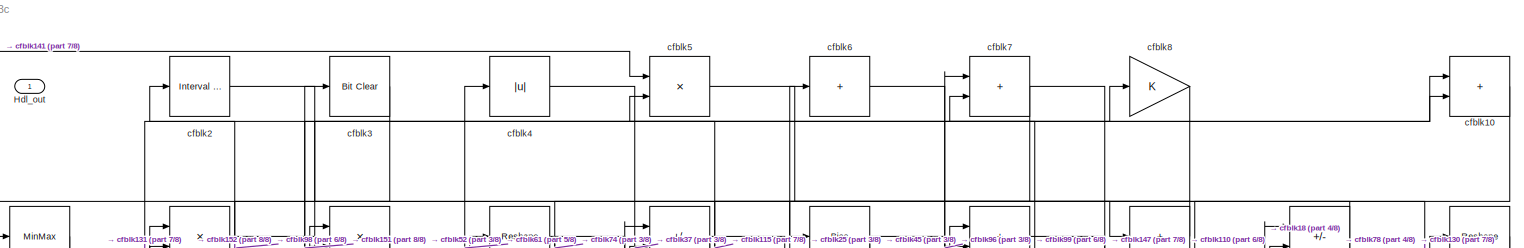
[diagram: root canvas - part 1/8, full width, top band]
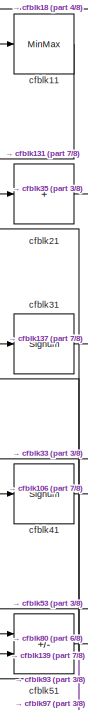
[diagram: root canvas - part 2/8, top left region]
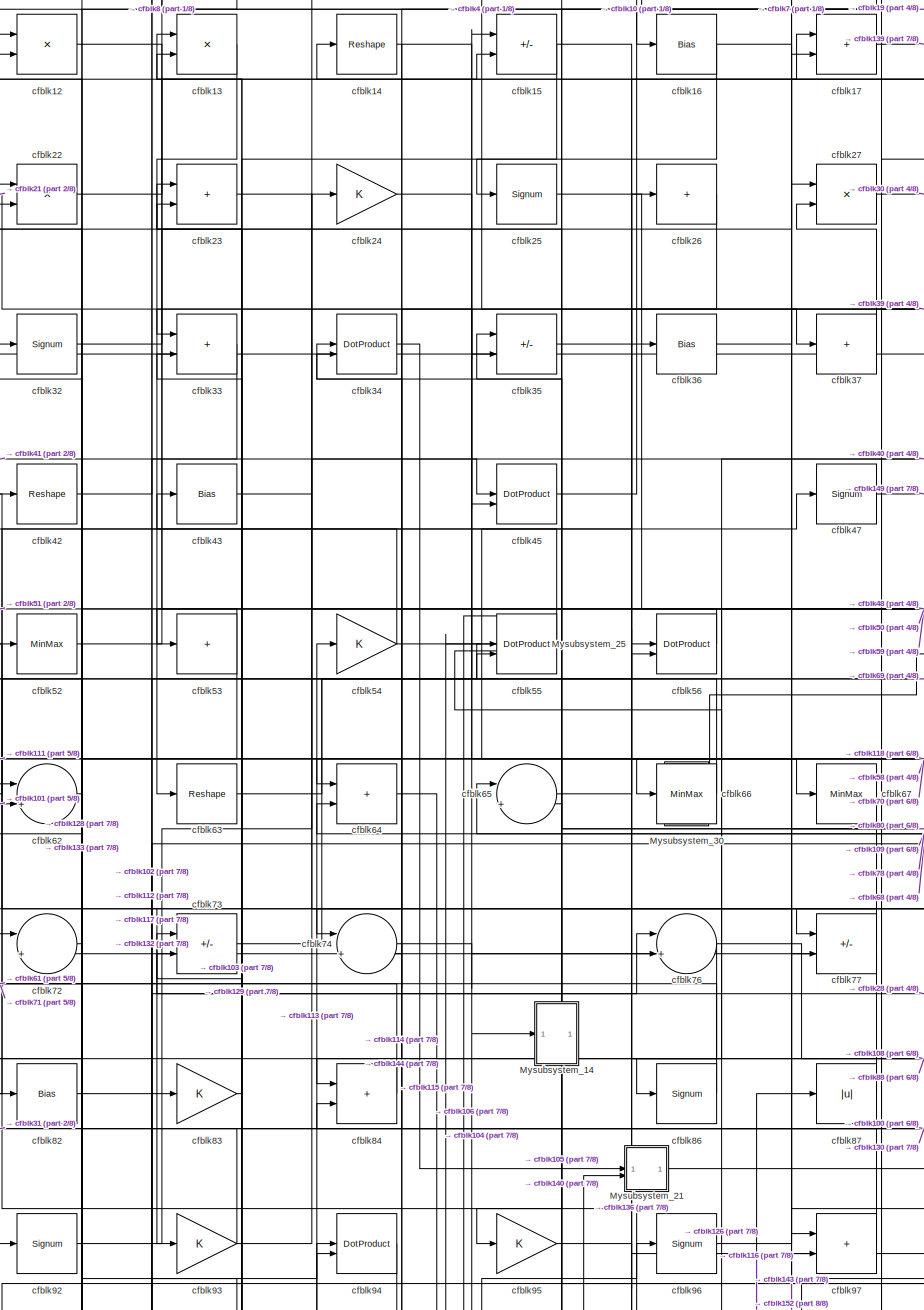
[diagram: root canvas - part 3/8, central region]
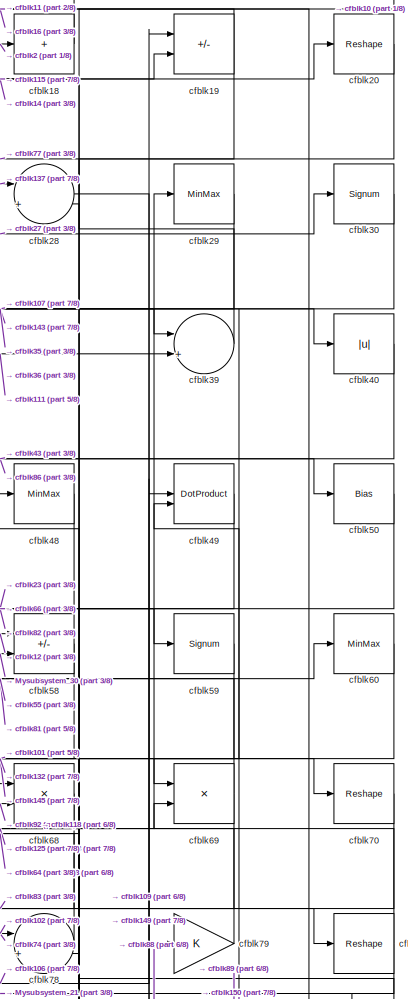
[diagram: root canvas - part 4/8, top right region]
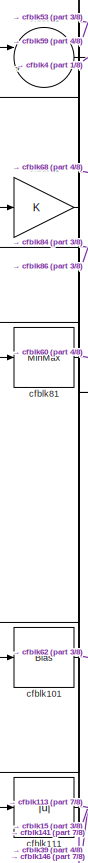
[diagram: root canvas - part 5/8, middle left region]
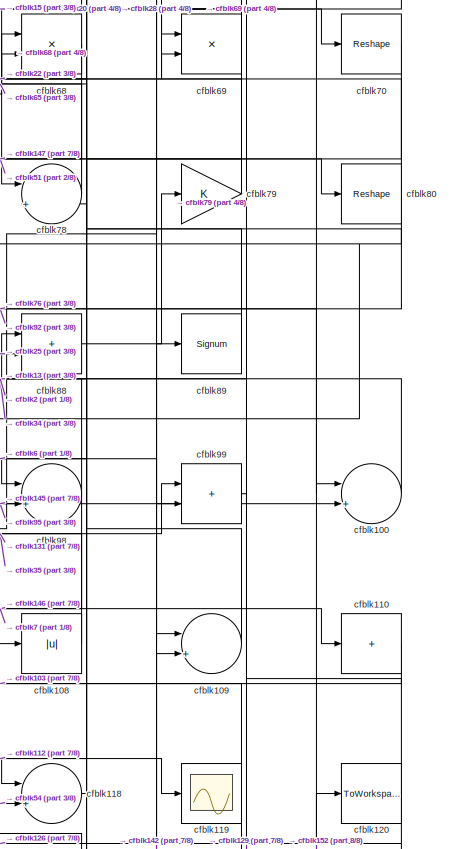
[diagram: root canvas - part 6/8, middle right region]
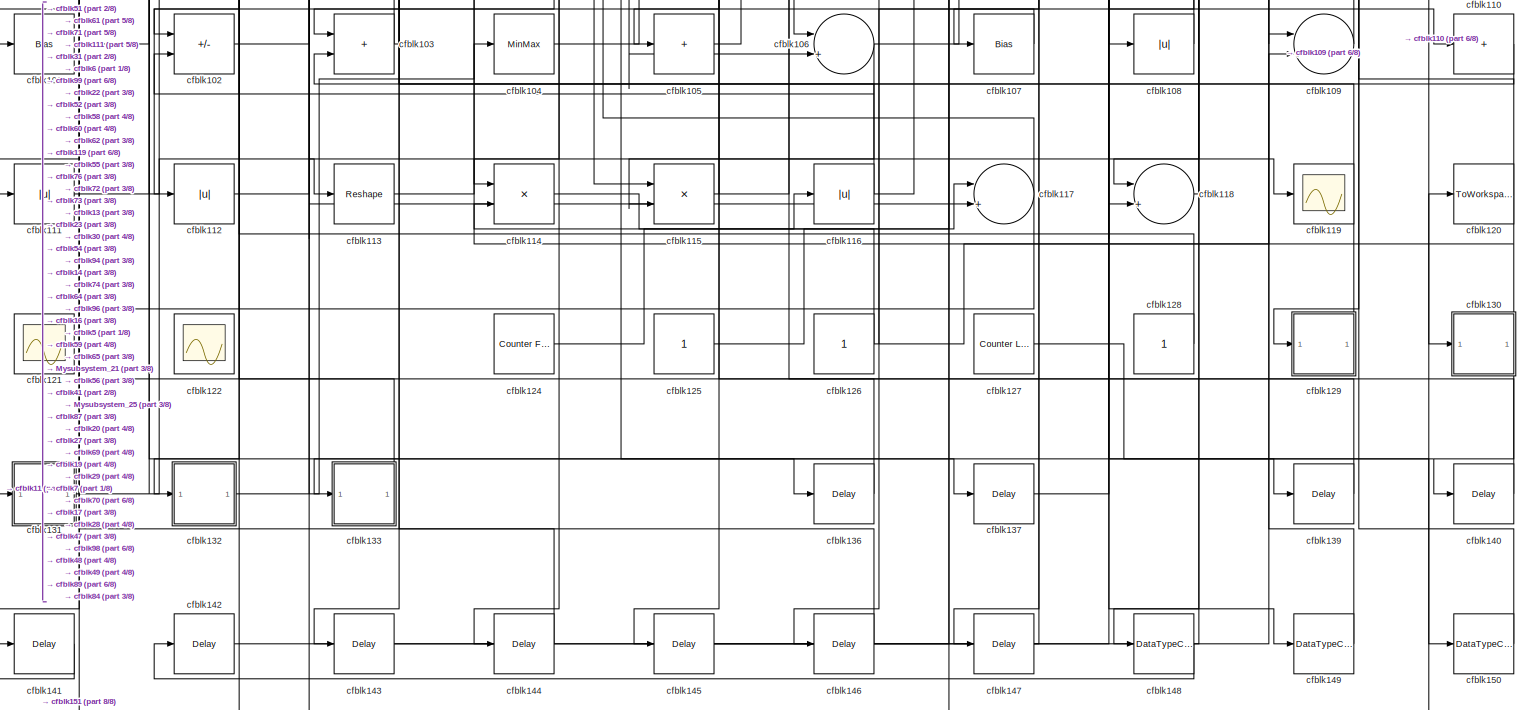
[diagram: root canvas - part 7/8, full width, bottom band]
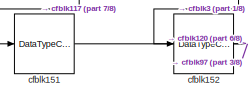
[diagram: root canvas - part 8/8, bottom left region]
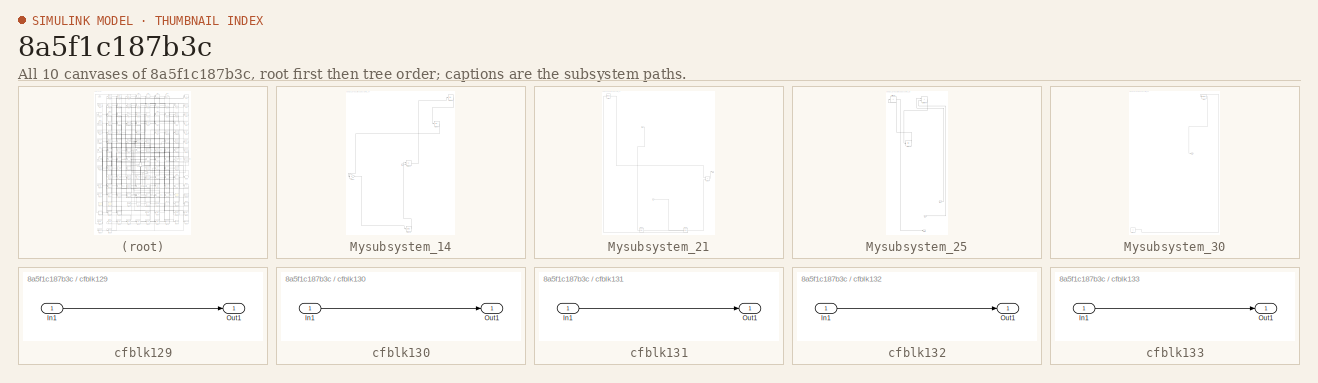
[diagram: thumbnail index - all 10 canvases of the model, root first then tree order]
MODEL slx_8a5f1c187b3c
KIND model
CONFIG AbsTol = auto
CONFIG EnableMultiTasking = off
CONFIG FixedStep = auto
CONFIG MaxStep = auto
CONFIG MinStep = auto
CONFIG RelTol = 1e-3
CONFIG SampleTimeConstraint = Unconstrained
CONFIG SolverName = VariableStepAuto
CONFIG StartTime = 0.0
CONFIG StopTime = 10.0
BLOCK [Outport] Hdl_out
  OutDataTypeStr = uint8
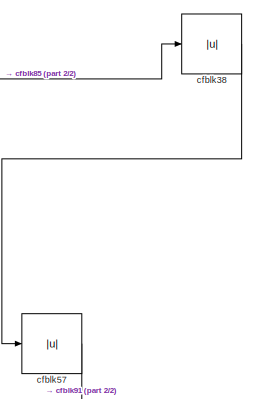
[diagram: Mysubsystem_14 - part 1/2, top right region]
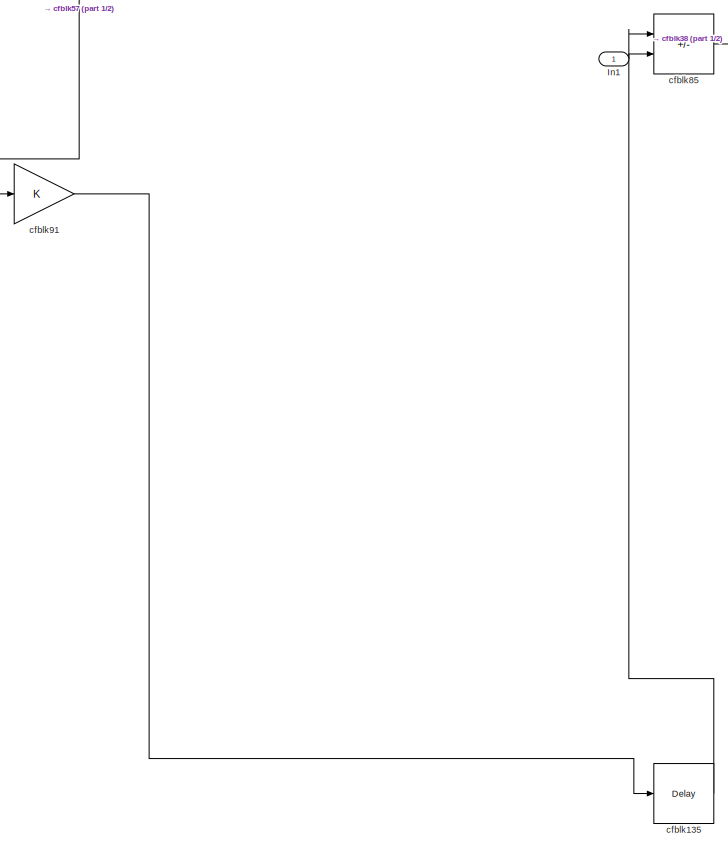
[diagram: Mysubsystem_14 - part 2/2, bottom left region]
BLOCK [SubSystem] Mysubsystem_14
  RTWFcnName = Mysubsystem_14
  RTWFcnNameOpts = User specified
  RTWFileNameOpts = Use function name
  RTWSystemCode = Reusable function
  TreatAsAtomicUnit = on
BLOCK [Inport] Mysubsystem_14/In1
BLOCK [Delay] Mysubsystem_14/cfblk135
  InputPortMap = u0
  SampleTime = 1
BLOCK [Abs] Mysubsystem_14/cfblk38
  SaturateOnIntegerOverflow = off
BLOCK [Abs] Mysubsystem_14/cfblk57
  SaturateOnIntegerOverflow = off
BLOCK [Sum] Mysubsystem_14/cfblk85
  IconShape = rectangular
  Inputs = +-
BLOCK [Gain] Mysubsystem_14/cfblk91
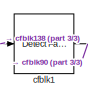
[diagram: Mysubsystem_21 - part 1/3, top left region]
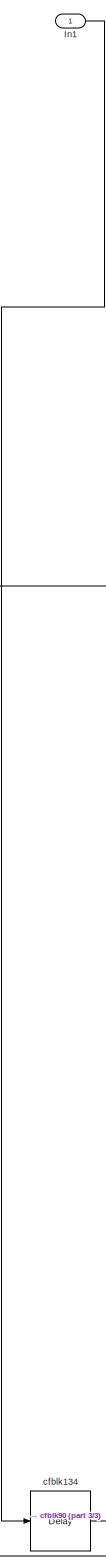
[diagram: Mysubsystem_21 - part 2/3, center side, full height]
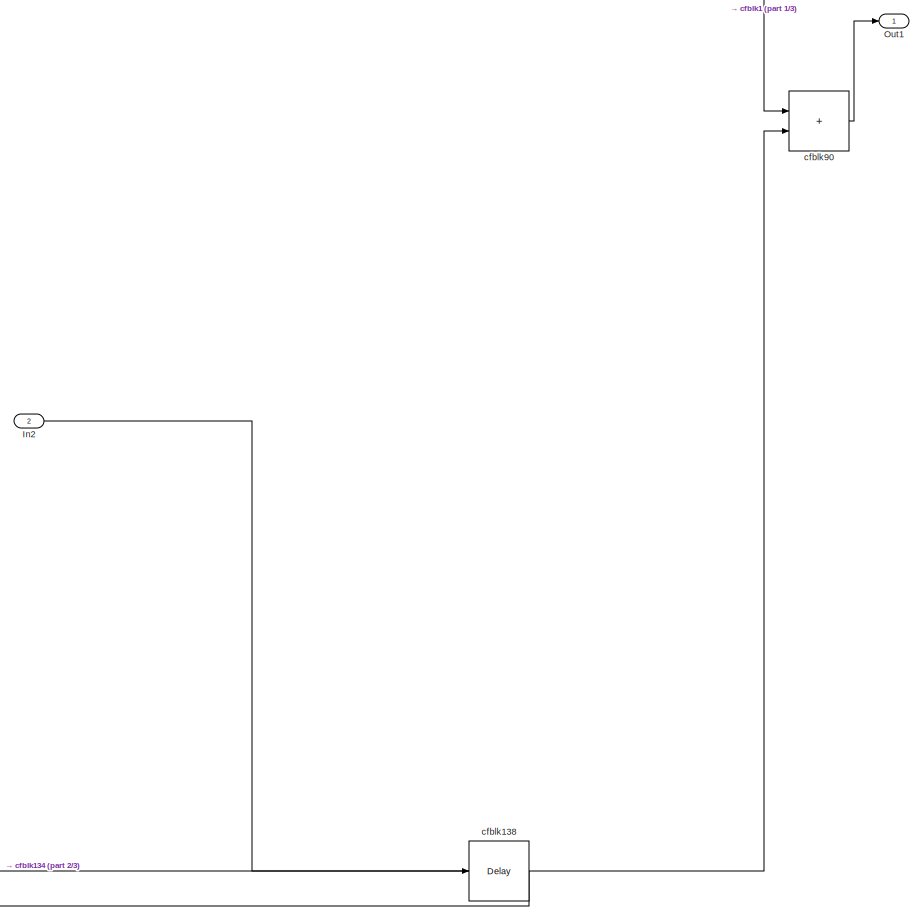
[diagram: Mysubsystem_21 - part 3/3, bottom right region]
BLOCK [SubSystem] Mysubsystem_21
  RTWFcnName = Mysubsystem_21
  RTWFcnNameOpts = User specified
  RTWFileNameOpts = Use function name
  RTWSystemCode = Reusable function
  TreatAsAtomicUnit = on
BLOCK [Inport] Mysubsystem_21/In1
BLOCK [Inport] Mysubsystem_21/In2
  Port = 2
BLOCK [Outport] Mysubsystem_21/Out1
BLOCK [Reference] Mysubsystem_21/cfblk1  REF=hdlsllib/Logic and Bit
Operations/Detect Fall
Nonpositive
  SourceBlock = hdlsllib/Logic and Bit\nOperations/Detect Fall\nNonpositive
  SourceType = Detect Fall Nonpositive
BLOCK [Delay] Mysubsystem_21/cfblk134
  InputPortMap = u0
  SampleTime = 1
BLOCK [Delay] Mysubsystem_21/cfblk138
  InputPortMap = u0
  SampleTime = 1
BLOCK [Sum] Mysubsystem_21/cfblk90
  IconShape = rectangular
BLOCK [SubSystem] Mysubsystem_25
  RTWFcnName = Mysubsystem_25
  RTWFcnNameOpts = User specified
  RTWFileNameOpts = Use function name
  RTWSystemCode = Reusable function
  TreatAsAtomicUnit = on
BLOCK [Inport] Mysubsystem_25/In1
BLOCK [Inport] Mysubsystem_25/In2
  Port = 2
BLOCK [Outport] Mysubsystem_25/Out1
BLOCK [Sum] Mysubsystem_25/cfblk44
  IconShape = rectangular
  Inputs = +
BLOCK [Sum] Mysubsystem_25/cfblk46
  IconShape = rectangular
BLOCK [Abs] Mysubsystem_25/cfblk75
  SaturateOnIntegerOverflow = off
BLOCK [SubSystem] Mysubsystem_30
  RTWFcnName = Mysubsystem_30
  RTWFcnNameOpts = User specified
  RTWFileNameOpts = Use function name
  RTWSystemCode = Reusable function
  TreatAsAtomicUnit = on
BLOCK [Outport] Mysubsystem_30/Out1
BLOCK [Constant] Mysubsystem_30/cfblk123
  SampleTime = -1
BLOCK [MinMax] Mysubsystem_30/cfblk9
BLOCK [Sum] cfblk10
  IconShape = rectangular
  OutDataTypeStr = uint8
BLOCK [Sum] cfblk100
  Inputs = |++
  OutDataTypeStr = uint8
BLOCK [Bias] cfblk101
  Bias = 0.0
  SaturateOnIntegerOverflow = off
BLOCK [Sum] cfblk102
  IconShape = rectangular
  Inputs = +-
  OutDataTypeStr = uint8
BLOCK [Sum] cfblk103
  IconShape = rectangular
  OutDataTypeStr = uint8
BLOCK [MinMax] cfblk104
  OutDataTypeStr = uint8
BLOCK [Sum] cfblk105
  IconShape = rectangular
  Inputs = +
  OutDataTypeStr = uint8
BLOCK [Sum] cfblk106
  Inputs = |++
  OutDataTypeStr = uint8
BLOCK [Bias] cfblk107
  Bias = 0.0
  SaturateOnIntegerOverflow = off
BLOCK [Abs] cfblk108
  OutDataTypeStr = uint8
  SaturateOnIntegerOverflow = off
BLOCK [Sum] cfblk109
  Inputs = |++
  OutDataTypeStr = uint8
BLOCK [MinMax] cfblk11
  OutDataTypeStr = uint8
BLOCK [Sum] cfblk110
  IconShape = rectangular
  Inputs = +
  OutDataTypeStr = uint8
BLOCK [Abs] cfblk111
  OutDataTypeStr = uint8
  SaturateOnIntegerOverflow = off
BLOCK [Abs] cfblk112
  OutDataTypeStr = uint8
  SaturateOnIntegerOverflow = off
BLOCK [Reshape] cfblk113
BLOCK [Product] cfblk114
  Inputs = */
  OutDataTypeStr = uint8
  RndMeth = Zero
  SaturateOnIntegerOverflow = on
BLOCK [Product] cfblk115
  Inputs = */
  OutDataTypeStr = uint8
  RndMeth = Zero
  SaturateOnIntegerOverflow = on
BLOCK [Abs] cfblk116
  OutDataTypeStr = uint8
  SaturateOnIntegerOverflow = off
BLOCK [Sum] cfblk117
  Inputs = |++
  OutDataTypeStr = uint8
BLOCK [Sum] cfblk118
  Inputs = |++
  OutDataTypeStr = uint8
BLOCK [Scope] cfblk119
  Floating = off
  NumInputPorts = 1
  ScopeSpecificationString = Simulink.scopes.TimeScopeBlockCfg('CurrentConfiguration', extmgr.ConfigurationSet(extmgr.Configuration('Core','General UI',true),extmgr.Configuration('Core','Source UI',true),extmgr.Configuration('Sources','WiredSimulink',true,'DataLoggingVariableName','ScopeData2','DataLoggingSaveFormat','Array','DataLoggingLimitDataPoints',true,'DataLoggingDecimation','1'),extmgr.Configuration('Visuals','Time Do...<+868ch>
BLOCK [Product] cfblk12
  Inputs = */
  OutDataTypeStr = uint8
  RndMeth = Zero
  SaturateOnIntegerOverflow = on
BLOCK [ToWorkspace] cfblk120
  MaxDataPoints = inf
  SampleTime = -1
  SaveFormat = Timeseries
  VariableName = simout
BLOCK [Scope] cfblk121
  Floating = on
  NumInputPorts = 1
  ScopeSpecificationString = Simulink.scopes.TimeScopeBlockCfg('CurrentConfiguration', extmgr.ConfigurationSet(extmgr.Configuration('Core','General UI',true,'FigureColor',[0.156862745098039 0.156862745098039 0.156862745098039]),extmgr.Configuration('Core','Source UI',true),extmgr.Configuration('Sources','WiredSimulink',true,'DataLoggingVariableName','ScopeData1','DataLoggingSaveFormat','StructureWithTime','DataLoggingLimitDat...<+2713ch>
BLOCK [Scope] cfblk122
  Floating = on
  NumInputPorts = 1
  ScopeSpecificationString = Simulink.scopes.TimeScopeBlockCfg('CurrentConfiguration', extmgr.ConfigurationSet(extmgr.Configuration('Core','General UI',true,'FigureColor',[0.156862745098039 0.156862745098039 0.156862745098039]),extmgr.Configuration('Core','Source UI',true),extmgr.Configuration('Sources','WiredSimulink',true,'DataLoggingVariableName','ScopeData1','DataLoggingSaveFormat','StructureWithTime','DataLoggingLimitDat...<+2713ch>
BLOCK [Reference] cfblk124  REF=hdlsllib/Sources/Counter
Free-Running
  SourceBlock = hdlsllib/Sources/Counter\nFree-Running
  SourceType = Counter Free-Running
BLOCK [Constant] cfblk125
  OutDataTypeStr = uint8
  SampleTime = -1
BLOCK [Constant] cfblk126
  OutDataTypeStr = uint8
  SampleTime = -1
BLOCK [Reference] cfblk127  REF=hdlsllib/Sources/Counter
Limited
  SourceBlock = hdlsllib/Sources/Counter\nLimited
  SourceType = Counter Limited
BLOCK [Constant] cfblk128
  OutDataTypeStr = uint8
  SampleTime = -1
BLOCK [SubSystem] cfblk129
  LibrarySourceBlock = hdlsllib/Ports &\nSubsystems/Subsystem
BLOCK [Inport] cfblk129/In1
BLOCK [Outport] cfblk129/Out1
BLOCK [Product] cfblk13
  Inputs = */
  OutDataTypeStr = uint8
  RndMeth = Zero
  SaturateOnIntegerOverflow = on
BLOCK [SubSystem] cfblk130
  LibrarySourceBlock = hdlsllib/Ports &\nSubsystems/Subsystem
BLOCK [Inport] cfblk130/In1
BLOCK [Outport] cfblk130/Out1
BLOCK [SubSystem] cfblk131
  LibrarySourceBlock = hdlsllib/Ports &\nSubsystems/Subsystem
BLOCK [Inport] cfblk131/In1
BLOCK [Outport] cfblk131/Out1
BLOCK [SubSystem] cfblk132
  LibrarySourceBlock = hdlsllib/Ports &\nSubsystems/Subsystem
BLOCK [Inport] cfblk132/In1
BLOCK [Outport] cfblk132/Out1
BLOCK [SubSystem] cfblk133
  LibrarySourceBlock = hdlsllib/Ports &\nSubsystems/Subsystem
BLOCK [Inport] cfblk133/In1
BLOCK [Outport] cfblk133/Out1
BLOCK [Delay] cfblk136
  InputPortMap = u0
  SampleTime = 1
BLOCK [Delay] cfblk137
  InputPortMap = u0
  SampleTime = 1
BLOCK [Delay] cfblk139
  InputPortMap = u0
  SampleTime = 1
BLOCK [Reshape] cfblk14
BLOCK [Delay] cfblk140
  InputPortMap = u0
  SampleTime = 1
BLOCK [Delay] cfblk141
  InputPortMap = u0
  SampleTime = 1
BLOCK [Delay] cfblk142
  InputPortMap = u0
  SampleTime = 1
BLOCK [Delay] cfblk143
  InputPortMap = u0
  SampleTime = 1
BLOCK [Delay] cfblk144
  InputPortMap = u0
  SampleTime = 1
BLOCK [Delay] cfblk145
  InputPortMap = u0
  SampleTime = 1
BLOCK [Delay] cfblk146
  InputPortMap = u0
  SampleTime = 1
BLOCK [Delay] cfblk147
  InputPortMap = u0
  SampleTime = 1
BLOCK [DataTypeConversion] cfblk148
  OutDataTypeStr = uint8
  RndMeth = Floor
  SaturateOnIntegerOverflow = off
BLOCK [DataTypeConversion] cfblk149
  OutDataTypeStr = uint8
  RndMeth = Floor
  SaturateOnIntegerOverflow = off
BLOCK [Sum] cfblk15
  IconShape = rectangular
  Inputs = +-
  OutDataTypeStr = uint8
BLOCK [DataTypeConversion] cfblk150
  OutDataTypeStr = uint8
  RndMeth = Floor
  SaturateOnIntegerOverflow = off
BLOCK [DataTypeConversion] cfblk151
  OutDataTypeStr = uint8
  RndMeth = Floor
  SaturateOnIntegerOverflow = off
BLOCK [DataTypeConversion] cfblk152
  OutDataTypeStr = uint8
  RndMeth = Floor
  SaturateOnIntegerOverflow = off
BLOCK [Bias] cfblk16
  Bias = 0.0
  SaturateOnIntegerOverflow = off
BLOCK [Sum] cfblk17
  IconShape = rectangular
  OutDataTypeStr = uint8
BLOCK [Sum] cfblk18
  IconShape = rectangular
  Inputs = +
  OutDataTypeStr = uint8
BLOCK [Sum] cfblk19
  IconShape = rectangular
  Inputs = +-
  OutDataTypeStr = uint8
BLOCK [Reference] cfblk2  REF=hdlsllib/Logic and Bit
Operations/Interval Test
  SourceBlock = hdlsllib/Logic and Bit\nOperations/Interval Test
  SourceType = Interval Test
BLOCK [Reshape] cfblk20
BLOCK [Sum] cfblk21
  IconShape = rectangular
  Inputs = +
  OutDataTypeStr = uint8
BLOCK [Product] cfblk22
  Inputs = */
  OutDataTypeStr = uint8
  RndMeth = Zero
  SaturateOnIntegerOverflow = on
BLOCK [Sum] cfblk23
  IconShape = rectangular
  OutDataTypeStr = uint8
BLOCK [Gain] cfblk24
  OutDataTypeStr = uint8
BLOCK [Signum] cfblk25
BLOCK [Sum] cfblk26
  IconShape = rectangular
  Inputs = +
  OutDataTypeStr = uint8
BLOCK [Product] cfblk27
  Inputs = */
  OutDataTypeStr = uint8
  RndMeth = Zero
  SaturateOnIntegerOverflow = on
BLOCK [Sum] cfblk28
  Inputs = |++
  OutDataTypeStr = uint8
BLOCK [MinMax] cfblk29
  OutDataTypeStr = uint8
BLOCK [Reference] cfblk3  REF=simulink/Logic and Bit
Operations/Bit Clear
  LibrarySourceBlock = hdlsllib/Logic and Bit\nOperations/Bit Clear
  SourceBlock = simulink/Logic and Bit\nOperations/Bit Clear
  SourceType = Bit Clear
BLOCK [Signum] cfblk30
BLOCK [Signum] cfblk31
BLOCK [Signum] cfblk32
BLOCK [Sum] cfblk33
  IconShape = rectangular
  OutDataTypeStr = uint8
BLOCK [DotProduct] cfblk34
  OutDataTypeStr = uint8
BLOCK [Sum] cfblk35
  IconShape = rectangular
  Inputs = +-
  OutDataTypeStr = uint8
BLOCK [Bias] cfblk36
  Bias = 0.0
  SaturateOnIntegerOverflow = off
BLOCK [Sum] cfblk37
  IconShape = rectangular
  Inputs = +
  OutDataTypeStr = uint8
BLOCK [Sum] cfblk39
  Inputs = |++
  OutDataTypeStr = uint8
BLOCK [Abs] cfblk4
  OutDataTypeStr = uint8
  SaturateOnIntegerOverflow = off
BLOCK [Abs] cfblk40
  OutDataTypeStr = uint8
  SaturateOnIntegerOverflow = off
BLOCK [Signum] cfblk41
BLOCK [Reshape] cfblk42
BLOCK [Bias] cfblk43
  Bias = 0.0
  SaturateOnIntegerOverflow = off
BLOCK [DotProduct] cfblk45
  OutDataTypeStr = uint8
BLOCK [Signum] cfblk47
BLOCK [MinMax] cfblk48
  OutDataTypeStr = uint8
BLOCK [DotProduct] cfblk49
  OutDataTypeStr = uint8
BLOCK [Product] cfblk5
  Inputs = */
  OutDataTypeStr = uint8
  RndMeth = Zero
  SaturateOnIntegerOverflow = on
BLOCK [Bias] cfblk50
  Bias = 0.0
  SaturateOnIntegerOverflow = off
BLOCK [Sum] cfblk51
  IconShape = rectangular
  Inputs = +-
  OutDataTypeStr = uint8
BLOCK [MinMax] cfblk52
  OutDataTypeStr = uint8
BLOCK [Sum] cfblk53
  IconShape = rectangular
  Inputs = +
  OutDataTypeStr = uint8
BLOCK [Gain] cfblk54
  OutDataTypeStr = uint8
BLOCK [DotProduct] cfblk55
  OutDataTypeStr = uint8
BLOCK [DotProduct] cfblk56
  OutDataTypeStr = uint8
BLOCK [Sum] cfblk58
  IconShape = rectangular
  Inputs = +-
  OutDataTypeStr = uint8
BLOCK [Signum] cfblk59
BLOCK [Sum] cfblk6
  IconShape = rectangular
  Inputs = +
  OutDataTypeStr = uint8
BLOCK [MinMax] cfblk60
  OutDataTypeStr = uint8
BLOCK [Sum] cfblk61
  Inputs = |++
  OutDataTypeStr = uint8
BLOCK [Sum] cfblk62
  Inputs = |++
  OutDataTypeStr = uint8
BLOCK [Reshape] cfblk63
BLOCK [Sum] cfblk64
  IconShape = rectangular
  OutDataTypeStr = uint8
BLOCK [Sum] cfblk65
  Inputs = |++
  OutDataTypeStr = uint8
BLOCK [MinMax] cfblk66
  OutDataTypeStr = uint8
BLOCK [MinMax] cfblk67
  OutDataTypeStr = uint8
BLOCK [Product] cfblk68
  Inputs = */
  OutDataTypeStr = uint8
  RndMeth = Zero
  SaturateOnIntegerOverflow = on
BLOCK [Product] cfblk69
  Inputs = */
  OutDataTypeStr = uint8
  RndMeth = Zero
  SaturateOnIntegerOverflow = on
BLOCK [Sum] cfblk7
  IconShape = rectangular
  OutDataTypeStr = uint8
BLOCK [Reshape] cfblk70
BLOCK [Gain] cfblk71
  OutDataTypeStr = uint8
BLOCK [Sum] cfblk72
  Inputs = |++
  OutDataTypeStr = uint8
BLOCK [Sum] cfblk73
  IconShape = rectangular
  Inputs = +-
  OutDataTypeStr = uint8
BLOCK [Sum] cfblk74
  Inputs = |++
  OutDataTypeStr = uint8
BLOCK [Sum] cfblk76
  Inputs = |++
  OutDataTypeStr = uint8
BLOCK [Sum] cfblk77
  IconShape = rectangular
  Inputs = +-
  OutDataTypeStr = uint8
BLOCK [Sum] cfblk78
  Inputs = |++
  OutDataTypeStr = uint8
BLOCK [Gain] cfblk79
  OutDataTypeStr = uint8
BLOCK [Gain] cfblk8
  OutDataTypeStr = uint8
BLOCK [Reshape] cfblk80
BLOCK [MinMax] cfblk81
  OutDataTypeStr = uint8
BLOCK [Bias] cfblk82
  Bias = 0.0
  SaturateOnIntegerOverflow = off
BLOCK [Gain] cfblk83
  OutDataTypeStr = uint8
BLOCK [Sum] cfblk84
  IconShape = rectangular
  OutDataTypeStr = uint8
BLOCK [Signum] cfblk86
BLOCK [Abs] cfblk87
  OutDataTypeStr = uint8
  SaturateOnIntegerOverflow = off
BLOCK [Sum] cfblk88
  IconShape = rectangular
  OutDataTypeStr = uint8
BLOCK [Signum] cfblk89
BLOCK [Signum] cfblk92
BLOCK [Gain] cfblk93
  OutDataTypeStr = uint8
BLOCK [DotProduct] cfblk94
  OutDataTypeStr = uint8
BLOCK [Gain] cfblk95
  OutDataTypeStr = uint8
BLOCK [Signum] cfblk96
BLOCK [Sum] cfblk97
  IconShape = rectangular
  OutDataTypeStr = uint8
BLOCK [Sum] cfblk98
  Inputs = |++
  OutDataTypeStr = uint8
BLOCK [Sum] cfblk99
  IconShape = rectangular
  OutDataTypeStr = uint8
LINE Mysubsystem_14/In1:1 -> Mysubsystem_14/cfblk85:2
LINE Mysubsystem_14/cfblk135:1 -> Mysubsystem_14/cfblk85:1
LINE Mysubsystem_14/cfblk38:1 -> Mysubsystem_14/cfblk57:1
LINE Mysubsystem_14/cfblk57:1 -> Mysubsystem_14/cfblk91:1
LINE Mysubsystem_14/cfblk85:1 -> Mysubsystem_14/cfblk38:1
LINE Mysubsystem_14/cfblk91:1 -> Mysubsystem_14/cfblk135:1
LINE Mysubsystem_21/In1:1 -> Mysubsystem_21/cfblk134:1
LINE Mysubsystem_21/In2:1 -> Mysubsystem_21/cfblk138:1
LINE Mysubsystem_21/cfblk134:1 -> Mysubsystem_21/cfblk90:2
LINE Mysubsystem_21/cfblk138:1 -> Mysubsystem_21/cfblk1:1
LINE Mysubsystem_21/cfblk1:1 -> Mysubsystem_21/cfblk90:1
LINE Mysubsystem_21/cfblk90:1 -> Mysubsystem_21/Out1:1
NET Mysubsystem_21:1 -> cfblk28:2, cfblk73:1
LINE Mysubsystem_25/In1:1 -> Mysubsystem_25/cfblk46:1
LINE Mysubsystem_25/In2:1 -> Mysubsystem_25/cfblk46:2
LINE Mysubsystem_25/cfblk44:1 -> Mysubsystem_25/Out1:1
LINE Mysubsystem_25/cfblk46:1 -> Mysubsystem_25/cfblk75:1
LINE Mysubsystem_25/cfblk75:1 -> Mysubsystem_25/cfblk44:1
LINE Mysubsystem_25:1 -> cfblk136:1
LINE Mysubsystem_30/cfblk123:1 -> Mysubsystem_30/cfblk9:1
LINE Mysubsystem_30/cfblk9:1 -> Mysubsystem_30/Out1:1
LINE Mysubsystem_30:1 -> cfblk58:2
NET cfblk100:1 -> cfblk13:1, cfblk34:1
LINE cfblk101:1 -> cfblk62:2
LINE cfblk102:1 -> cfblk94:2
NET cfblk103:1 -> cfblk72:1, cfblk73:2
LINE cfblk104:1 -> cfblk96:1
LINE cfblk105:1 -> Mysubsystem_21:2
NET cfblk106:1 -> cfblk115:2, cfblk19:1
LINE cfblk107:1 -> cfblk103:1
LINE cfblk108:1 -> cfblk35:1
LINE cfblk109:1 -> cfblk65:1
LINE cfblk10:1 -> cfblk78:2
LINE cfblk110:1 -> cfblk103:2
NET cfblk111:1 -> cfblk113:1, cfblk15:2, cfblk39:2
NET cfblk112:1 -> cfblk119:1, cfblk76:1
LINE cfblk113:1 -> cfblk94:1
LINE cfblk114:1 -> cfblk117:1
NET cfblk115:1 -> cfblk19:2, cfblk5:2
NET cfblk116:1 -> cfblk102:2, cfblk13:2, cfblk52:1, cfblk87:1
NET cfblk117:1 -> Mysubsystem_25:1, cfblk151:1
LINE cfblk118:1 -> cfblk88:1
LINE cfblk11:1 -> cfblk131:1
LINE cfblk124:1 -> cfblk116:1
NET cfblk125:1 -> cfblk20:1, cfblk69:2
NET cfblk126:1 -> Mysubsystem_25:2, cfblk54:1, cfblk89:1
LINE cfblk127:1 -> cfblk150:1
LINE cfblk128:1 -> cfblk62:1
LINE cfblk129/In1:1 -> cfblk129/Out1:1
LINE cfblk129:1 -> cfblk23:1
LINE cfblk12:1 -> cfblk58:1
LINE cfblk130/In1:1 -> cfblk130/Out1:1
NET cfblk130:1 -> cfblk114:2, cfblk133:1, cfblk140:1, cfblk84:2
LINE cfblk131/In1:1 -> cfblk131/Out1:1
NET cfblk131:1 -> cfblk6:1, cfblk99:1
LINE cfblk132/In1:1 -> cfblk132/Out1:1
NET cfblk132:1 -> cfblk104:1, cfblk55:2
LINE cfblk133/In1:1 -> cfblk133/Out1:1
LINE cfblk133:1 -> cfblk22:1
LINE cfblk136:1 -> cfblk56:1
LINE cfblk137:1 -> cfblk28:1
LINE cfblk139:1 -> cfblk51:2
LINE cfblk13:1 -> cfblk63:1
LINE cfblk140:1 -> cfblk65:2
LINE cfblk141:1 -> cfblk5:1
LINE cfblk142:1 -> cfblk109:2
LINE cfblk143:1 -> cfblk27:1
LINE cfblk144:1 -> cfblk23:2
LINE cfblk145:1 -> cfblk98:2
LINE cfblk146:1 -> cfblk61:2
LINE cfblk147:1 -> cfblk7:2
NET cfblk148:1 -> cfblk142:1, cfblk48:1
LINE cfblk149:1 -> cfblk49:1
NET cfblk14:1 -> Mysubsystem_14:1, cfblk106:2, cfblk114:1
LINE cfblk150:1 -> cfblk49:2
LINE cfblk151:1 -> cfblk3:1
NET cfblk152:1 -> cfblk120:1, cfblk97:2
NET cfblk15:1 -> cfblk33:1, cfblk70:1
NET cfblk16:1 -> cfblk105:1, cfblk97:1
LINE cfblk17:1 -> cfblk139:1
LINE cfblk18:1 -> cfblk11:1
NET cfblk19:1 -> cfblk16:1, cfblk77:1
LINE cfblk20:1 -> cfblk118:1
LINE cfblk21:1 -> cfblk35:2
LINE cfblk22:1 -> cfblk17:1
LINE cfblk23:1 -> cfblk59:1
LINE cfblk24:1 -> cfblk67:1
NET cfblk25:1 -> cfblk108:1, cfblk88:2
NET cfblk26:1 -> cfblk45:2, cfblk64:1
LINE cfblk27:1 -> cfblk30:1
LINE cfblk28:1 -> cfblk109:1
LINE cfblk29:1 -> cfblk107:1
LINE cfblk2:1 -> cfblk18:1
NET cfblk30:1 -> cfblk143:1, cfblk69:1
LINE cfblk31:1 -> cfblk137:1
LINE cfblk32:1 -> cfblk17:2
LINE cfblk33:1 -> cfblk41:1
LINE cfblk34:1 -> Mysubsystem_21:1
LINE cfblk35:1 -> cfblk40:1
LINE cfblk36:1 -> cfblk39:1
LINE cfblk37:1 -> cfblk27:2
LINE cfblk39:1 -> cfblk14:1
LINE cfblk3:1 -> cfblk152:1
LINE cfblk40:1 -> cfblk86:1
LINE cfblk41:1 -> cfblk106:1
LINE cfblk42:1 -> cfblk45:1
NET cfblk43:1 -> cfblk50:1, cfblk77:2
LINE cfblk45:1 -> cfblk10:1
LINE cfblk47:1 -> cfblk149:1
LINE cfblk48:1 -> cfblk66:1
LINE cfblk49:1 -> cfblk148:1
LINE cfblk4:1 -> cfblk37:1
LINE cfblk50:1 -> cfblk82:1
LINE cfblk51:1 -> cfblk80:1
NET cfblk52:1 -> cfblk10:2, cfblk117:2, cfblk8:1
NET cfblk53:1 -> cfblk111:1, cfblk51:1
NET cfblk54:1 -> cfblk118:2, cfblk26:1, cfblk33:2
LINE cfblk55:1 -> cfblk12:1
LINE cfblk56:1 -> cfblk53:1
NET cfblk58:1 -> cfblk102:1, cfblk74:2, cfblk78:1
NET cfblk59:1 -> cfblk101:1, cfblk145:1
LINE cfblk5:1 -> cfblk130:1
LINE cfblk60:1 -> cfblk132:1
LINE cfblk61:1 -> cfblk4:1
LINE cfblk62:1 -> cfblk12:2
LINE cfblk63:1 -> cfblk36:1
LINE cfblk64:1 -> cfblk115:1
LINE cfblk65:1 -> cfblk56:2
LINE cfblk66:1 -> cfblk42:1
LINE cfblk67:1 -> cfblk95:1
NET cfblk68:1 -> cfblk81:1, cfblk83:1
NET cfblk69:1 -> cfblk55:1, cfblk98:1
LINE cfblk6:1 -> cfblk99:2
LINE cfblk70:1 -> cfblk147:1
LINE cfblk71:1 -> cfblk141:1
LINE cfblk72:1 -> cfblk32:1
LINE cfblk73:1 -> cfblk15:1
NET cfblk74:1 -> cfblk144:1, cfblk76:2
NET cfblk76:1 -> cfblk100:1, cfblk84:1
LINE cfblk77:1 -> cfblk34:2
LINE cfblk78:1 -> cfblk64:2
LINE cfblk79:1 -> cfblk29:1
NET cfblk7:1 -> cfblk110:1, cfblk25:1
NET cfblk80:1 -> cfblk22:2, cfblk92:1
LINE cfblk81:1 -> cfblk60:1
LINE cfblk82:1 -> cfblk93:1
LINE cfblk83:1 -> cfblk43:1
LINE cfblk84:1 -> cfblk71:1
LINE cfblk86:1 -> cfblk61:1
LINE cfblk87:1 -> cfblk72:2
LINE cfblk88:1 -> cfblk79:1
LINE cfblk89:1 -> cfblk68:1
LINE cfblk8:1 -> cfblk74:1
NET cfblk92:1 -> cfblk24:1, cfblk68:2
NET cfblk93:1 -> cfblk21:1, cfblk47:1
LINE cfblk94:1 -> cfblk112:1
LINE cfblk95:1 -> cfblk100:2
LINE cfblk96:1 -> cfblk7:1
LINE cfblk97:1 -> cfblk31:1
NET cfblk98:1 -> cfblk146:1, cfblk2:1
LINE cfblk99:1 -> cfblk129:1
note: NET lines group one-source signal fan-out (src -> all destinations, sorted); 1:1 wires keep LINE
